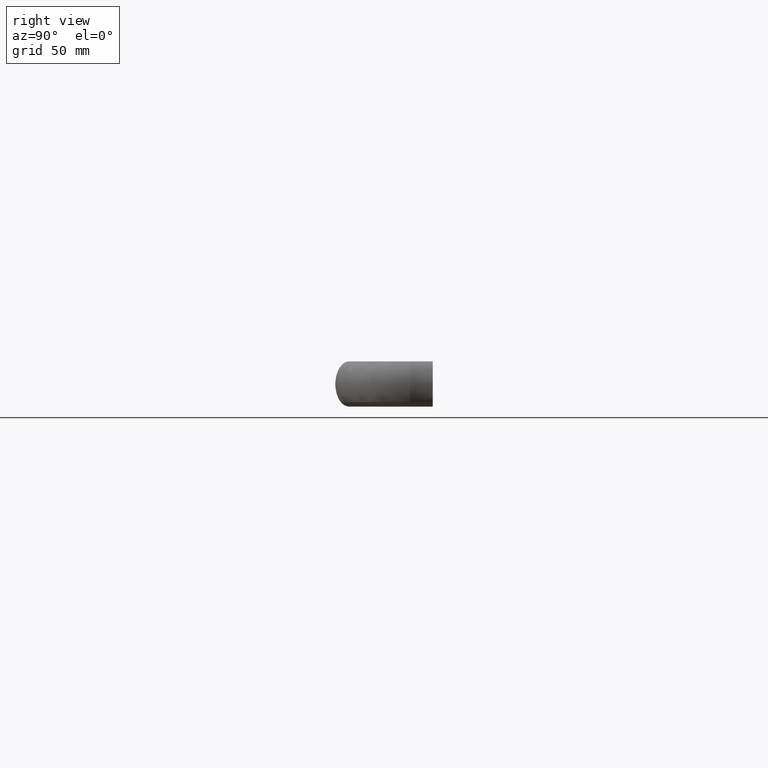
[diagram: clean part render]
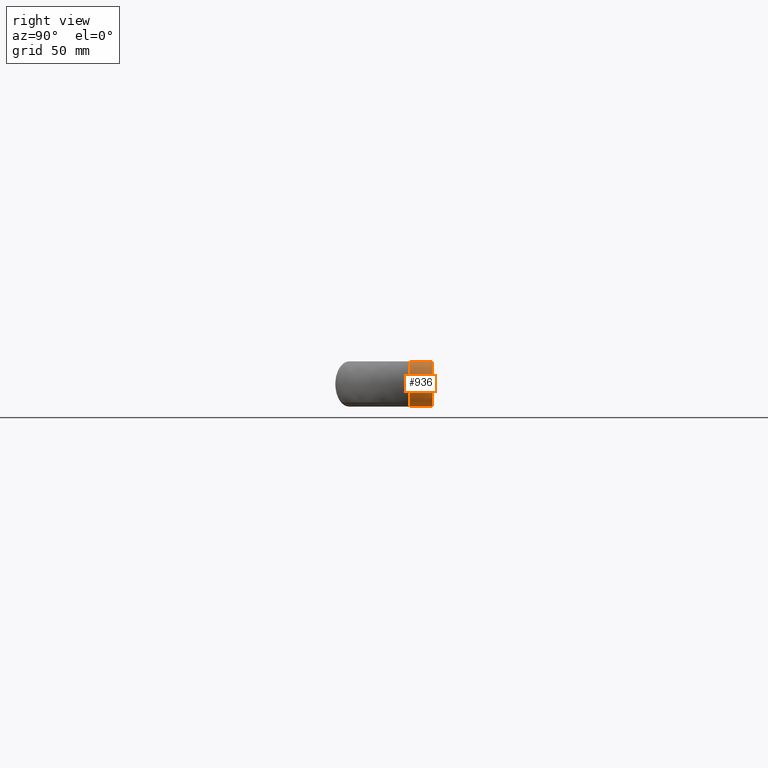
[diagram: same view with one face highlighted and labeled with its STEP entity id]
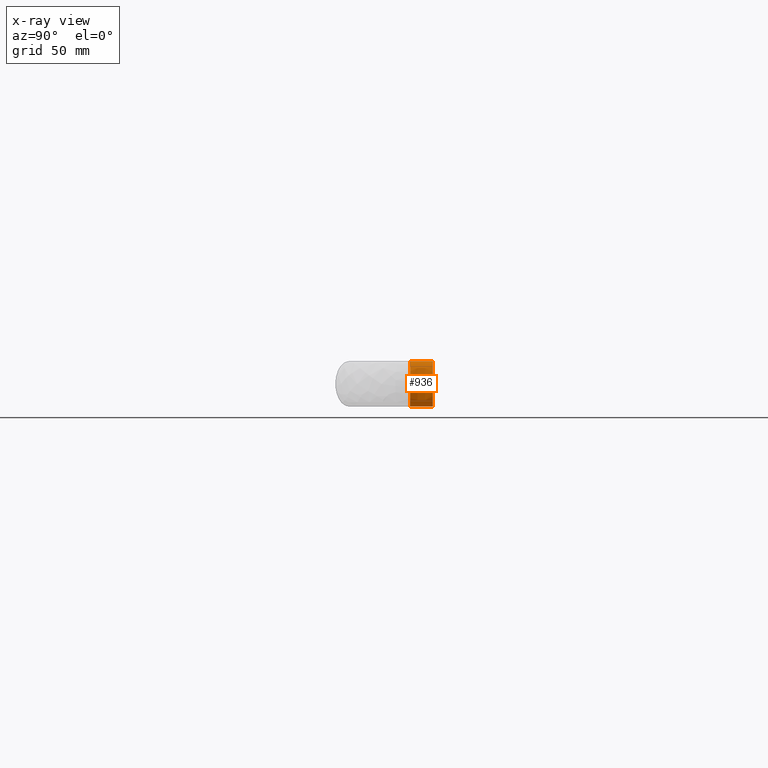
[diagram: x-ray of the same camera — body ghosted, the highlighted face saturated]
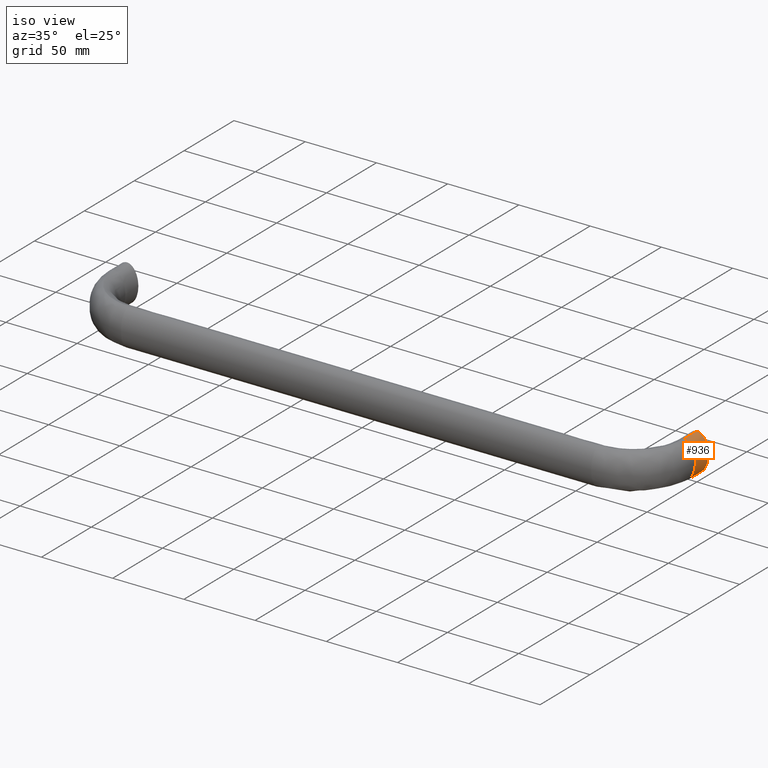
[diagram: same view with one face highlighted and labeled with its STEP entity id]
A machine part, right view. The second image highlights one B-rep face of the part: STEP entity #936.
The next image is the same camera in x-ray: the body ghosted, the highlighted face saturated — about 0% of this face is hidden behind the body in this view.
A second angle (iso view) of the same face is appended — the face is thin or edge-on in the first view.
In plain terms, the highlighted face is a freeform B-spline surface patch.
Its self-contained STEP definition (entity closure, byte-faithful):
#772=CARTESIAN_POINT('',(395.713650452418280,-13.0,-10.975612390839739));
#773=CARTESIAN_POINT('',(396.102646376771190,-13.0,-11.376898705442461));
#774=CARTESIAN_POINT('',(396.512839412099030,-13.0,-11.723901138068509));
#775=CARTESIAN_POINT('',(397.906016925125930,-13.0,-12.661644796688099));
#776=CARTESIAN_POINT('',(398.952802448803480,-13.0,-13.0));
#777=CARTESIAN_POINT('',(401.047197551196520,-13.0,-13.0));
#778=CARTESIAN_POINT('',(402.093983074874470,-13.0,-12.661644796688099));
#779=CARTESIAN_POINT('',(404.028951842966990,-13.0,-11.359223048605360));
#780=CARTESIAN_POINT('',(404.916373759799510,-13.0,-10.395668951176340));
#781=CARTESIAN_POINT('',(407.137815228878480,-13.0,-6.785826563922671));
#782=CARTESIAN_POINT('',(408.0,-13.0,-3.403392041388941));
#783=CARTESIAN_POINT('',(408.0,-13.0,3.403392041388945));
#784=CARTESIAN_POINT('',(407.137815228878480,-13.0,6.785826563922671));
#785=CARTESIAN_POINT('',(404.916373759799510,-13.0,10.395668951176340));
#786=CARTESIAN_POINT('',(404.028951842966990,-13.0,11.359223048605340));
#787=CARTESIAN_POINT('',(402.093983074874470,-13.0,12.661644796688099));
#788=CARTESIAN_POINT('',(401.047197551196520,-13.0,13.0));
#789=CARTESIAN_POINT('',(400.0,-13.0,13.0));
#790=CARTESIAN_POINT('',(395.713679379536980,-8.666666667109720,-10.975612390839739));
#791=CARTESIAN_POINT('',(396.102675498955080,-8.666666667115694,-11.376898705442461));
#792=CARTESIAN_POINT('',(396.512868736267020,-8.666666667121945,-11.723901138068509));
#793=CARTESIAN_POINT('',(397.906046923059480,-8.666666667143010,-12.661644796688099));
#794=CARTESIAN_POINT('',(398.952832931142500,-8.666666667158522,-13.0));
#795=CARTESIAN_POINT('',(401.047228959870490,-8.666666667188871,-13.0));
#796=CARTESIAN_POINT('',(402.094014926364030,-8.666666667203691,-12.661644796688099));
#797=CARTESIAN_POINT('',(404.028984479936530,-8.666666667230510,-11.359223048605360));
#798=CARTESIAN_POINT('',(404.916406743454500,-8.666666667242550,-10.395668951176340));
#799=CARTESIAN_POINT('',(407.137849045430020,-8.666666667272009,-6.785826563922671));
#800=CARTESIAN_POINT('',(408.000034127084520,-8.666666667283172,-3.403392041388941));
#801=CARTESIAN_POINT('',(408.000034127084520,-8.666666667283172,3.403392041388945));
#802=CARTESIAN_POINT('',(407.137849045430020,-8.666666667272009,6.785826563922671));
#803=CARTESIAN_POINT('',(404.916406743454500,-8.666666667242550,10.395668951176340));
#804=CARTESIAN_POINT('',(404.028984479936530,-8.666666667230510,11.359223048605340));
#805=CARTESIAN_POINT('',(402.094014926364030,-8.666666667203691,12.661644796688099));
#806=CARTESIAN_POINT('',(401.047228959870490,-8.666666667188871,13.0));
#807=CARTESIAN_POINT('',(400.000030945506520,-8.666666667173695,13.0));
#808=CARTESIAN_POINT('',(395.713650452418280,-4.333333333000499,-10.975612390839739));
#809=CARTESIAN_POINT('',(396.102646376771190,-4.333333332996013,-11.376898705442461));
#810=CARTESIAN_POINT('',(396.512839412099030,-4.333333332991317,-11.723901138068509));
#811=CARTESIAN_POINT('',(397.906016925125930,-4.333333332975490,-12.661644796688099));
#812=CARTESIAN_POINT('',(398.952802448803480,-4.333333332963846,-13.0));
#813=CARTESIAN_POINT('',(401.047197551196520,-4.333333332941050,-13.0));
#814=CARTESIAN_POINT('',(402.093983074874470,-4.333333332929915,-12.661644796688099));
#815=CARTESIAN_POINT('',(404.028951842966990,-4.333333332909775,-11.359223048605360));
#816=CARTESIAN_POINT('',(404.916373759799510,-4.333333332900736,-10.395668951176340));
#817=CARTESIAN_POINT('',(407.137815228878480,-4.333333332878610,-6.785826563922671));
#818=CARTESIAN_POINT('',(408.0,-4.333333332870225,-3.403392041388941));
#819=CARTESIAN_POINT('',(408.0,-4.333333332870225,3.403392041388945));
#820=CARTESIAN_POINT('',(407.137815228878480,-4.333333332878610,6.785826563922671));
#821=CARTESIAN_POINT('',(404.916373759799510,-4.333333332900736,10.395668951176340));
#822=CARTESIAN_POINT('',(404.028951842966990,-4.333333332909775,11.359223048605340));
#823=CARTESIAN_POINT('',(402.093983074874470,-4.333333332929915,12.661644796688099));
#824=CARTESIAN_POINT('',(401.047197551196520,-4.333333332941050,13.0));
#825=CARTESIAN_POINT('',(400.0,-4.333333332952448,13.0));
#826=CARTESIAN_POINT('',(395.713650452418280,4.908427E-014,-10.975612390839739));
#827=CARTESIAN_POINT('',(396.102646376771190,4.907519E-014,-11.376898705442461));
#828=CARTESIAN_POINT('',(396.512839412099030,4.906562E-014,-11.723901138068509));
#829=CARTESIAN_POINT('',(397.906016925125930,4.903311E-014,-12.661644796688099));
#830=CARTESIAN_POINT('',(398.952802448803480,4.900869E-014,-13.0));
#831=CARTESIAN_POINT('',(401.047197551196520,4.895982E-014,-13.0));
#832=CARTESIAN_POINT('',(402.093983074874470,4.893539E-014,-12.661644796688099));
#833=CARTESIAN_POINT('',(404.028951842966990,4.889024E-014,-11.359223048605360));
#834=CARTESIAN_POINT('',(404.916373759799510,4.886954E-014,-10.395668951176340));
#835=CARTESIAN_POINT('',(407.137815228878480,4.881770E-014,-6.785826563922671));
#836=CARTESIAN_POINT('',(408.0,4.879759E-014,-3.403392041388941));
#837=CARTESIAN_POINT('',(408.0,4.879759E-014,3.403392041388945));
#838=CARTESIAN_POINT('',(407.137815228878480,4.881770E-014,6.785826563922671));
#839=CARTESIAN_POINT('',(404.916373759799510,4.886954E-014,10.395668951176340));
#840=CARTESIAN_POINT('',(404.028951842966990,4.889024E-014,11.359223048605340));
#841=CARTESIAN_POINT('',(402.093983074874470,4.893539E-014,12.661644796688099));
#842=CARTESIAN_POINT('',(401.047197551196520,4.895982E-014,13.0));
#843=CARTESIAN_POINT('',(400.0,4.898425E-014,13.0));
#844=B_SPLINE_SURFACE_WITH_KNOTS('',3,3,((#772,#790,#808,#826),(#773,#791,#809,#827),(#774,#792,#810,#828),(#775,#793,#811,#829),(#776,#794,#812,#830),(#777,#795,#813,#831),(#778,#796,#814,#832),(#779,#797,#815,#833),(#780,#798,#816,#834),(#781,#799,#817,#835),(#782,#800,#818,#836),(#783,#801,#819,#837),(#784,#802,#820,#838),(#785,#803,#821,#839),(#786,#804,#822,#840),(#787,#805,#823,#841),(#788,#806,#824,#842),(#789,#807,#825,#843)),.UNSPECIFIED.,.F.,.F.,.U.,(4,2,2,2,2,2,2,2,4),(4,4),(0.0,2.196938207660576,7.189979588707334,12.183020969754089,17.176062350800851,27.162145112894368,37.148227874987882,42.141269256034647,47.134310637081413),(0.0,13.000000000657479),.UNSPECIFIED.);
#845=CARTESIAN_POINT('',(395.713650451803520,-13.0,-10.975612390205541));
#846=VERTEX_POINT('',#845);
#847=CARTESIAN_POINT('',(400.0,-13.0,-13.0));
#848=VERTEX_POINT('',#847);
#849=CARTESIAN_POINT('',(395.713650451803520,-13.0,-10.975612390205541));
#850=CARTESIAN_POINT('',(396.102646375906770,-13.0,-11.376898704711261));
#851=CARTESIAN_POINT('',(396.512839411650480,-13.0,-11.723901137766619));
#852=CARTESIAN_POINT('',(397.906016925125930,-13.0,-12.661644796688099));
#853=CARTESIAN_POINT('',(398.952802448803480,-13.0,-13.0));
#854=CARTESIAN_POINT('',(400.0,-13.0,-13.0));
#855=B_SPLINE_CURVE_WITH_KNOTS('',3,(#849,#850,#851,#852,#853,#854),.UNSPECIFIED.,.F.,.U.,(4,2,4),(0.409999999971026,0.437500000000000,0.500000000000000),.UNSPECIFIED.);
#856=EDGE_CURVE('',#846,#848,#855,.T.);
#857=ORIENTED_EDGE('',*,*,#856,.F.);
#858=CARTESIAN_POINT('',(395.712713911497470,4.896706E-014,-10.976521156664949));
#859=VERTEX_POINT('',#858);
#860=CARTESIAN_POINT('',(395.713650451803520,-13.0,-10.975612390205541));
#861=CARTESIAN_POINT('',(395.713367198820320,-8.666666667109718,-10.975915312358650));
#862=CARTESIAN_POINT('',(395.713026091599490,-4.333333333000498,-10.976218234511840));
#863=CARTESIAN_POINT('',(395.712713911497470,4.896706E-014,-10.976521156664949));
#864=B_SPLINE_CURVE_WITH_KNOTS('',3,(#860,#861,#862,#863),.UNSPECIFIED.,.F.,.U.,(4,4),(0.972100354596403,1.0),.UNSPECIFIED.);
#865=EDGE_CURVE('',#846,#859,#864,.T.);
#866=ORIENTED_EDGE('',*,*,#865,.T.);
#867=CARTESIAN_POINT('',(400.0,4.898425E-014,-13.0));
#868=VERTEX_POINT('',#867);
#869=CARTESIAN_POINT('',(395.712713911497470,4.896706E-014,-10.976521156664949));
#870=CARTESIAN_POINT('',(396.292623092245720,4.897281E-014,-11.574459158109031));
#871=CARTESIAN_POINT('',(396.939162869752180,4.897677E-014,-12.009822284221720));
#872=CARTESIAN_POINT('',(398.408929736692530,4.898579E-014,-12.999525192085860));
#873=CARTESIAN_POINT('',(400.0,4.898425E-014,-13.0));
#874=B_SPLINE_CURVE_WITH_KNOTS('',2,(#869,#870,#871,#872,#873),.UNSPECIFIED.,.F.,.U.,(3,2,3),(0.820000850230892,0.875000000000000,1.0),.UNSPECIFIED.);
#875=EDGE_CURVE('',#859,#868,#874,.T.);
#876=ORIENTED_EDGE('',*,*,#875,.T.);
#877=CARTESIAN_POINT('',(400.0,4.954956E-014,13.0));
#878=VERTEX_POINT('',#877);
#879=CARTESIAN_POINT('',(399.999999999999890,4.898425E-014,-13.0));
#880=CARTESIAN_POINT('',(401.591834374795780,4.894711E-014,-12.999801020701440));
#881=CARTESIAN_POINT('',(403.061467458920670,4.891282E-014,-12.010433922646749));
#882=CARTESIAN_POINT('',(404.532027237112910,4.887851E-014,-11.020442967773571));
#883=CARTESIAN_POINT('',(405.656854249492430,4.885226E-014,-9.192388155425149));
#884=CARTESIAN_POINT('',(406.782333938177490,4.882600E-014,-7.363272621696114));
#885=CARTESIAN_POINT('',(407.391036260090400,4.881179E-014,-4.974884620746188));
#886=CARTESIAN_POINT('',(408.000091779112210,4.879758E-014,-2.585110767127186));
#887=CARTESIAN_POINT('',(408.000000000000110,4.879759E-014,-1.914633E-014));
#888=CARTESIAN_POINT('',(407.999908167633290,4.879759E-014,2.586610767559430));
#889=CARTESIAN_POINT('',(407.391036260090400,4.881179E-014,4.974884620746161));
#890=CARTESIAN_POINT('',(406.781811057022710,4.882601E-014,7.364544260423404));
#891=CARTESIAN_POINT('',(405.656854249492430,4.885226E-014,9.192388155425141));
#892=CARTESIAN_POINT('',(404.531244690293310,4.887852E-014,11.021292649504840));
#893=CARTESIAN_POINT('',(403.061467458920670,4.891282E-014,12.010433922646730));
#894=CARTESIAN_POINT('',(401.591354582402570,4.894712E-014,12.999801080677500));
#895=CARTESIAN_POINT('',(399.999999999999890,4.898425E-014,13.000000000000011));
#896=B_SPLINE_CURVE_WITH_KNOTS('',2,(#879,#880,#881,#882,#883,#884,#885,#886,#887,#888,#889,#890,#891,#892,#893,#894,#895),.UNSPECIFIED.,.F.,.U.,(3,2,2,2,2,2,2,2,3),(0.0,0.125000000000000,0.250000000000000,0.375000000000000,0.500000000000000,0.625000000000000,0.750000000000000,0.875000000000000,1.0),.UNSPECIFIED.);
#897=EDGE_CURVE('',#868,#878,#896,.T.);
#898=ORIENTED_EDGE('',*,*,#897,.T.);
#899=CARTESIAN_POINT('',(400.0,-13.0,13.0));
#900=VERTEX_POINT('',#899);
#901=CARTESIAN_POINT('',(400.0,-13.0,13.0));
#902=CARTESIAN_POINT('',(400.000030945506520,-8.666666667173695,13.0));
#903=CARTESIAN_POINT('',(400.0,-4.333333332952448,13.0));
#904=CARTESIAN_POINT('',(400.0,4.898425E-014,13.0));
#905=B_SPLINE_CURVE_WITH_KNOTS('',3,(#901,#902,#903,#904),.UNSPECIFIED.,.F.,.U.,(4,4),(0.972100354596403,1.0),.UNSPECIFIED.);
#906=EDGE_CURVE('',#900,#878,#905,.T.);
#907=ORIENTED_EDGE('',*,*,#906,.F.);
#908=CARTESIAN_POINT('',(404.702026031346290,-13.0,-10.516608836256710));
#909=VERTEX_POINT('',#908);
#910=CARTESIAN_POINT('',(404.702026031346290,-13.0,-10.516608836256710));
#911=CARTESIAN_POINT('',(405.040959230750500,-13.0,-10.116656518417621));
#912=CARTESIAN_POINT('',(405.360662054242880,-13.0,-9.673700472705884));
#913=CARTESIAN_POINT('',(407.137815228878480,-13.0,-6.785826563922671));
#914=CARTESIAN_POINT('',(408.0,-13.0,-3.403392041388941));
#915=CARTESIAN_POINT('',(408.0,-13.0,3.403392041388945));
#916=CARTESIAN_POINT('',(407.137815228878480,-13.0,6.785826563922671));
#917=CARTESIAN_POINT('',(404.916373759799510,-13.0,10.395668951176340));
#918=CARTESIAN_POINT('',(404.028951842966990,-13.0,11.359223048605340));
#919=CARTESIAN_POINT('',(402.093983074874470,-13.0,12.661644796688099));
#920=CARTESIAN_POINT('',(401.047197551196520,-13.0,13.0));
#921=CARTESIAN_POINT('',(400.0,-13.0,13.0));
#922=B_SPLINE_CURVE_WITH_KNOTS('',3,(#910,#911,#912,#913,#914,#915,#916,#917,#918,#919,#920,#921),.UNSPECIFIED.,.F.,.U.,(4,2,2,2,2,4),(0.600000000052966,0.625000000000000,0.750000000000000,0.875000000000000,0.937500000000000,1.0),.UNSPECIFIED.);
#923=EDGE_CURVE('',#909,#900,#922,.T.);
#924=ORIENTED_EDGE('',*,*,#923,.F.);
#925=CARTESIAN_POINT('',(400.0,-13.0,-13.0));
#926=CARTESIAN_POINT('',(401.047197551196520,-13.0,-13.0));
#927=CARTESIAN_POINT('',(402.093983074874470,-13.0,-12.661644796688099));
#928=CARTESIAN_POINT('',(403.641958090168370,-13.0,-11.619707397670030));
#929=CARTESIAN_POINT('',(404.193626233137710,-13.0,-11.116537311956140));
#930=CARTESIAN_POINT('',(404.702026031346290,-13.0,-10.516608836256710));
#931=B_SPLINE_CURVE_WITH_KNOTS('',3,(#925,#926,#927,#928,#929,#930),.UNSPECIFIED.,.F.,.U.,(4,2,4),(0.500000000000000,0.562500000000000,0.600000000052967),.UNSPECIFIED.);
#932=EDGE_CURVE('',#848,#909,#931,.T.);
#933=ORIENTED_EDGE('',*,*,#932,.F.);
#934=EDGE_LOOP('',(#857,#866,#876,#898,#907,#924,#933));
#935=FACE_OUTER_BOUND('',#934,.T.);
#936=ADVANCED_FACE('',(#935),#844,.F.);